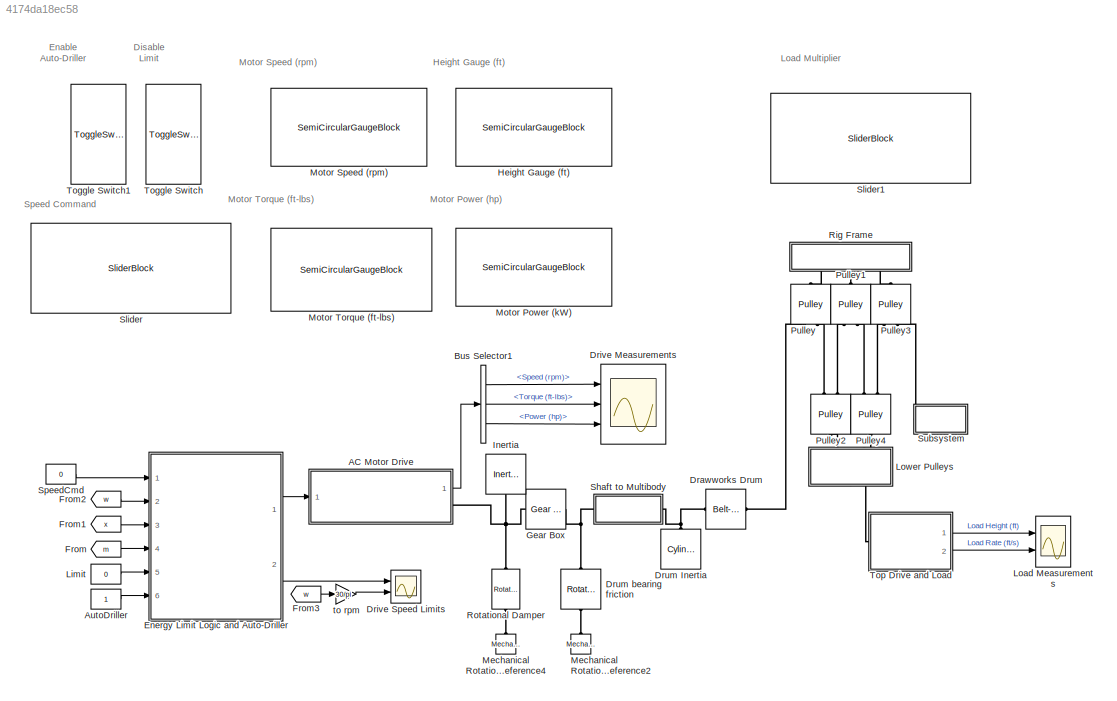
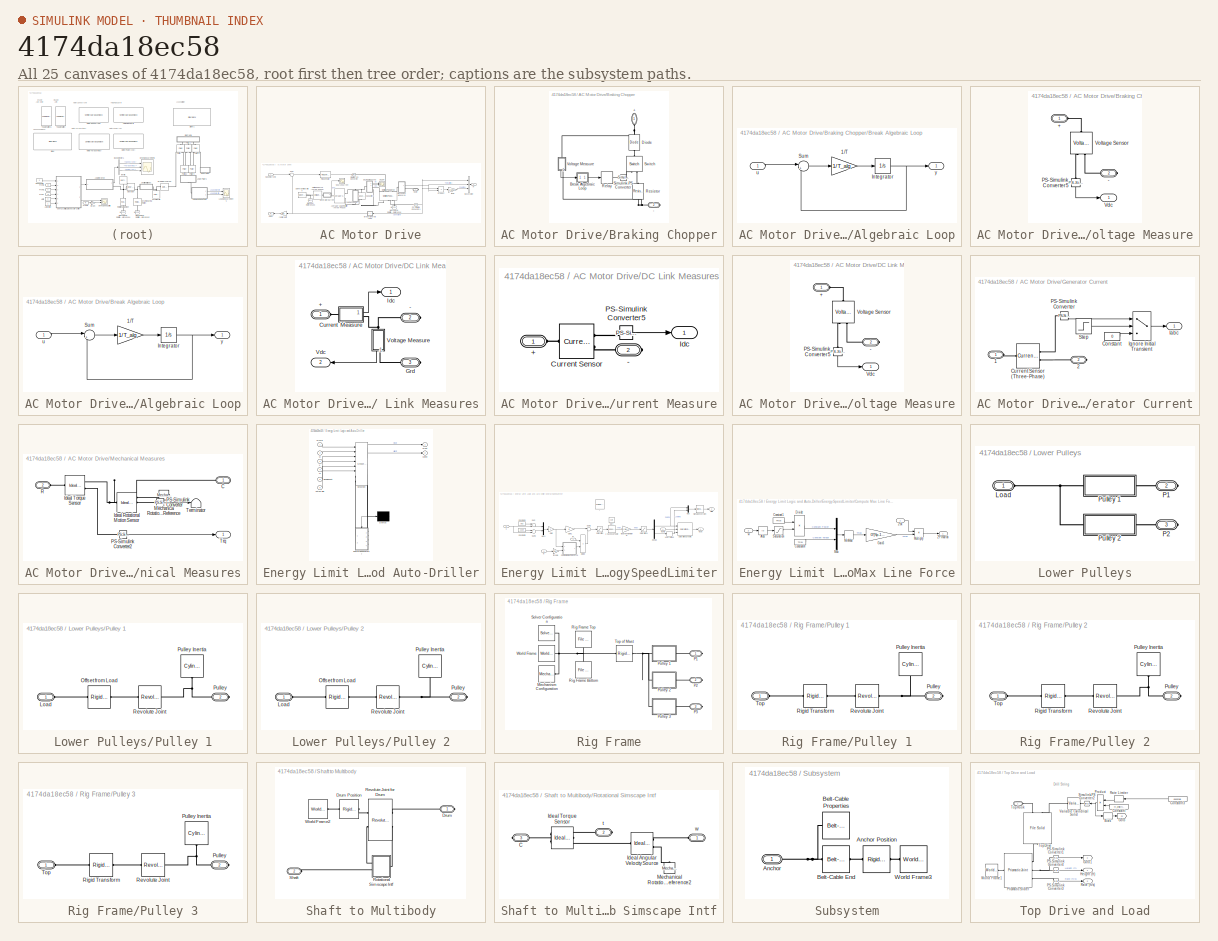
[diagram: thumbnail index - all 25 canvases of the model, root first then tree order]
MODEL slx_4174da18ec58
KIND model
CONFIG AbsTol = auto
CONFIG EnableMultiTasking = off
CONFIG FixedStep = auto
CONFIG InitFcn = Ts = 10e-4;        % SPS/Overall Simulation time step\nTssc = 10*Ts;       % Simscape simulation time step\nT_alg = 0.01;\n\nG = 10;\nRdrum = 0.25;\nNp = 5;\nm_topdrive = 1000;\nm_drillstring = 22500;\nRpulley = Rdrum;\n\nm = m_topdrive + m_drillstring;\n\n% Top/Bottom Distance\nxtop = 48*0.3048;\nxbott = 0;\n\n% Maximum Torque/Power of Drive\nTmax = 10000*1.36;\nPmax = 1500*746;\n\n% Initial Conditions\nv0 = 0; %m/s\nx...<+29ch>
CONFIG MaxStep = auto
CONFIG MinStep = auto
CONFIG PreLoadFcn = addpath('CAD_Files');\nwarning('off','sm:sli:setup:compile:LocalSolverNotSupported');\n\nloadScale = 4;
CONFIG RelTol = 1e-3
CONFIG SampleTimeConstraint = Unconstrained
CONFIG Solver = ode3
CONFIG SolverName = ode3
CONFIG StartTime = 0.0
CONFIG StopTime = inf
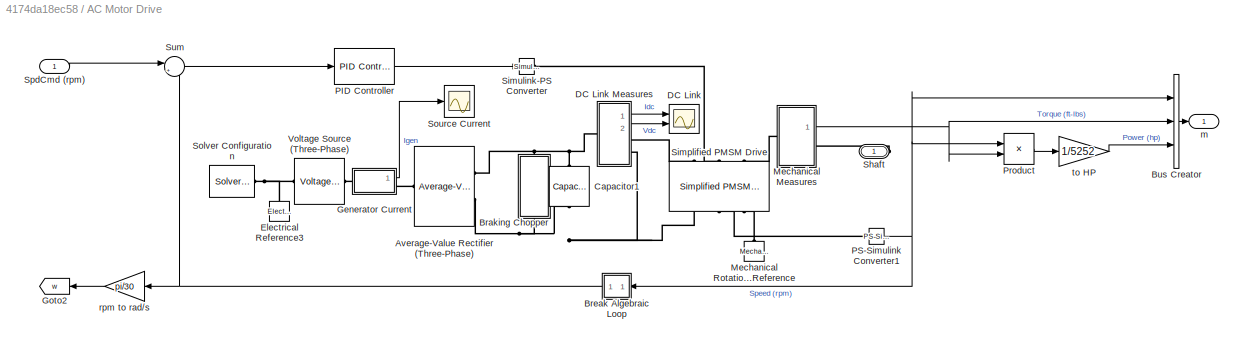
BLOCK [SubSystem] AC Motor Drive
  Ports = [1, 1, 0, 0, 0, 0, 1]
  RequestExecContextInheritance = off
BLOCK [Reference] AC Motor Drive/Average-Value Rectifier (Three-Phase)  REF=ee_lib/Semiconductors &
Converters/Converters/Average-Value
Rectifier
(Three-Phase)
  Ports = [0, 0, 0, 0, 0, 1, 2]
  SourceBlock = ee_lib/Semiconductors &\nConverters/Converters/Average-Value\nRectifier\n(Three-Phase)
  SourceProductBaseCode = PS
  SourceProductName = Simscape Electrical
  SourceType = Average-Value\nRectifier\n(Three-Phase)
BLOCK [SubSystem] AC Motor Drive/Braking Chopper
  Ports = [0, 0, 0, 0, 0, 1, 1]
  RequestExecContextInheritance = off
BLOCK [PMIOPort] AC Motor Drive/Braking Chopper/+
  Side = Left
BLOCK [PMIOPort] AC Motor Drive/Braking Chopper/-
  Port = 2
  Side = Right
BLOCK [SubSystem] AC Motor Drive/Braking Chopper/Break Algebraic Loop
  Ports = [1, 1]
  RequestExecContextInheritance = off
BLOCK [Gain] AC Motor Drive/Braking Chopper/Break Algebraic Loop/1//T
  Gain = 1/T_alg
  OutDataTypeStr = Inherit: Inherit via internal rule
  ParamDataTypeStr = Inherit: Inherit via internal rule
  SaturateOnIntegerOverflow = off
BLOCK [Integrator] AC Motor Drive/Braking Chopper/Break Algebraic Loop/Integrator
  Ports = [1, 1]
BLOCK [Sum] AC Motor Drive/Braking Chopper/Break Algebraic Loop/Sum
  IconShape = round
  InputSameDT = off
  Inputs = |+-
  OutDataTypeStr = Inherit: Inherit via internal rule
  Ports = [2, 1]
  SaturateOnIntegerOverflow = off
BLOCK [Inport] AC Motor Drive/Braking Chopper/Break Algebraic Loop/u
  IconDisplay = Port number
BLOCK [Outport] AC Motor Drive/Braking Chopper/Break Algebraic Loop/y
  IconDisplay = Port number
  VectorParamsAs1DForOutWhenUnconnected = off
BLOCK [Reference] AC Motor Drive/Braking Chopper/Diode  REF=fl_lib/Electrical/Electrical Elements/Diode
  Ports = [0, 0, 0, 0, 0, 1, 1]
  SourceBlock = fl_lib/Electrical/Electrical Elements/Diode
  SourceProductBaseCode = SS
  SourceProductName = Simscape
  SourceType = Diode
BLOCK [Relay] AC Motor Drive/Braking Chopper/Relay
  OffSwitchValue = 1200
  OnSwitchValue = 1500
BLOCK [Reference] AC Motor Drive/Braking Chopper/Resistor  REF=fl_lib/Electrical/Electrical Elements/Resistor
  Ports = [0, 0, 0, 0, 0, 1, 1]
  SourceBlock = fl_lib/Electrical/Electrical Elements/Resistor
  SourceProductBaseCode = SS
  SourceProductName = Simscape
  SourceType = Resistor
BLOCK [Reference] AC Motor Drive/Braking Chopper/Simulink-PS Converter  REF=nesl_utility/Simulink-PS
Converter
  Ports = [1, 0, 0, 0, 0, 0, 1]
  SourceBlock = nesl_utility/Simulink-PS\nConverter
  SourceProductBaseCode = SS
  SourceProductName = Simscape
  SourceType = Simulink-PS\nConverter
BLOCK [Reference] AC Motor Drive/Braking Chopper/Switch  REF=fl_lib/Electrical/Electrical Elements/Switch
  Ports = [0, 0, 0, 0, 0, 1, 2]
  SourceBlock = fl_lib/Electrical/Electrical Elements/Switch
  SourceProductBaseCode = SS
  SourceProductName = Simscape
  SourceType = Switch
BLOCK [SubSystem] AC Motor Drive/Braking Chopper/Voltage Measure
  Ports = [0, 1, 0, 0, 0, 1, 1]
  RequestExecContextInheritance = off
BLOCK [PMIOPort] AC Motor Drive/Braking Chopper/Voltage Measure/+
  Side = Left
BLOCK [PMIOPort] AC Motor Drive/Braking Chopper/Voltage Measure/-
  Port = 2
  Side = Right
BLOCK [Reference] AC Motor Drive/Braking Chopper/Voltage Measure/PS-Simulink Converter5  REF=nesl_utility/PS-Simulink
Converter
  Ports = [0, 1, 0, 0, 0, 1]
  SourceBlock = nesl_utility/PS-Simulink\nConverter
  SourceProductBaseCode = SS
  SourceProductName = Simscape
  SourceType = PS-Simulink\nConverter
BLOCK [Outport] AC Motor Drive/Braking Chopper/Voltage Measure/Vdc
  IconDisplay = Port number
  VectorParamsAs1DForOutWhenUnconnected = off
BLOCK [Reference] AC Motor Drive/Braking Chopper/Voltage Measure/Voltage Sensor  REF=fl_lib/Electrical/Electrical Sensors/Voltage Sensor
  Ports = [0, 0, 0, 0, 0, 1, 2]
  SourceBlock = fl_lib/Electrical/Electrical Sensors/Voltage Sensor
  SourceProductBaseCode = SS
  SourceProductName = Simscape
  SourceType = Voltage Sensor
BLOCK [SubSystem] AC Motor Drive/Break Algebraic Loop
  Ports = [1, 1]
  RequestExecContextInheritance = off
BLOCK [Gain] AC Motor Drive/Break Algebraic Loop/1//T
  Gain = 1/T_alg
  OutDataTypeStr = Inherit: Inherit via internal rule
  ParamDataTypeStr = Inherit: Inherit via internal rule
  SaturateOnIntegerOverflow = off
BLOCK [Integrator] AC Motor Drive/Break Algebraic Loop/Integrator
  Ports = [1, 1]
BLOCK [Sum] AC Motor Drive/Break Algebraic Loop/Sum
  IconShape = round
  InputSameDT = off
  Inputs = |+-
  OutDataTypeStr = Inherit: Inherit via internal rule
  Ports = [2, 1]
  SaturateOnIntegerOverflow = off
BLOCK [Inport] AC Motor Drive/Break Algebraic Loop/u
  IconDisplay = Port number
BLOCK [Outport] AC Motor Drive/Break Algebraic Loop/y
  IconDisplay = Port number
  VectorParamsAs1DForOutWhenUnconnected = off
BLOCK [BusCreator] AC Motor Drive/Bus Creator
  DisplayOption = bar
  InheritFromInputs = on
  Inputs = 3
  Ports = [3, 1]
BLOCK [Reference] AC Motor Drive/Capacitor1  REF=fl_lib/Electrical/Electrical Elements/Capacitor
  Ports = [0, 0, 0, 0, 0, 1, 1]
  SourceBlock = fl_lib/Electrical/Electrical Elements/Capacitor
  SourceProductBaseCode = SS
  SourceProductName = Simscape
  SourceType = Capacitor
BLOCK [Scope] AC Motor Drive/DC Link
  Floating = off
  NumInputPorts = 2
  Ports = [2]
  ScopeSpecificationString = Simulink.scopes.TimeScopeBlockCfg('CurrentConfiguration', extmgr.ConfigurationSet(extmgr.Configuration('Core','General UI',true),extmgr.Configuration('Core','Source UI',true),extmgr.Configuration('Sources','WiredSimulink',true),extmgr.Configuration('Visuals','Time Domain',true,'SerializedDisplays',{struct('MinYLimReal','-832.88922','MaxYLimReal','979.19835','YLabelReal','','MinYLimMag',' 0.00000',...<+2024ch>
BLOCK [SubSystem] AC Motor Drive/DC Link Measures
  Ports = [0, 2, 0, 0, 0, 1, 2]
  RequestExecContextInheritance = off
BLOCK [PMIOPort] AC Motor Drive/DC Link Measures/+
  Side = Left
BLOCK [PMIOPort] AC Motor Drive/DC Link Measures/-
  Port = 2
  Side = Right
BLOCK [SubSystem] AC Motor Drive/DC Link Measures/Current Measure
  Ports = [0, 1, 0, 0, 0, 1, 1]
  RequestExecContextInheritance = off
BLOCK [PMIOPort] AC Motor Drive/DC Link Measures/Current Measure/+
  Side = Left
BLOCK [PMIOPort] AC Motor Drive/DC Link Measures/Current Measure/-
  Port = 2
  Side = Right
BLOCK [Reference] AC Motor Drive/DC Link Measures/Current Measure/Current Sensor  REF=fl_lib/Electrical/Electrical Sensors/Current Sensor
  Ports = [0, 0, 0, 0, 0, 1, 2]
  SourceBlock = fl_lib/Electrical/Electrical Sensors/Current Sensor
  SourceProductBaseCode = SS
  SourceProductName = Simscape
  SourceType = Current Sensor
BLOCK [Outport] AC Motor Drive/DC Link Measures/Current Measure/Idc
  IconDisplay = Port number
  VectorParamsAs1DForOutWhenUnconnected = off
BLOCK [Reference] AC Motor Drive/DC Link Measures/Current Measure/PS-Simulink Converter5  REF=nesl_utility/PS-Simulink
Converter
  Ports = [0, 1, 0, 0, 0, 1]
  SourceBlock = nesl_utility/PS-Simulink\nConverter
  SourceProductBaseCode = SS
  SourceProductName = Simscape
  SourceType = PS-Simulink\nConverter
BLOCK [PMIOPort] AC Motor Drive/DC Link Measures/Grd
  Port = 3
  Side = Right
BLOCK [Outport] AC Motor Drive/DC Link Measures/Idc
  IconDisplay = Port number
  VectorParamsAs1DForOutWhenUnconnected = off
BLOCK [Outport] AC Motor Drive/DC Link Measures/Vdc
  IconDisplay = Port number
  Port = 2
  VectorParamsAs1DForOutWhenUnconnected = off
BLOCK [SubSystem] AC Motor Drive/DC Link Measures/Voltage Measure
  Ports = [0, 1, 0, 0, 0, 1, 1]
  RequestExecContextInheritance = off
BLOCK [PMIOPort] AC Motor Drive/DC Link Measures/Voltage Measure/+
  Side = Left
BLOCK [PMIOPort] AC Motor Drive/DC Link Measures/Voltage Measure/-
  Port = 2
  Side = Right
BLOCK [Reference] AC Motor Drive/DC Link Measures/Voltage Measure/PS-Simulink Converter5  REF=nesl_utility/PS-Simulink
Converter
  Ports = [0, 1, 0, 0, 0, 1]
  SourceBlock = nesl_utility/PS-Simulink\nConverter
  SourceProductBaseCode = SS
  SourceProductName = Simscape
  SourceType = PS-Simulink\nConverter
BLOCK [Outport] AC Motor Drive/DC Link Measures/Voltage Measure/Vdc
  IconDisplay = Port number
  VectorParamsAs1DForOutWhenUnconnected = off
BLOCK [Reference] AC Motor Drive/DC Link Measures/Voltage Measure/Voltage Sensor  REF=fl_lib/Electrical/Electrical Sensors/Voltage Sensor
  Ports = [0, 0, 0, 0, 0, 1, 2]
  SourceBlock = fl_lib/Electrical/Electrical Sensors/Voltage Sensor
  SourceProductBaseCode = SS
  SourceProductName = Simscape
  SourceType = Voltage Sensor
BLOCK [Reference] AC Motor Drive/Electrical Reference3  REF=fl_lib/Electrical/Electrical Elements/Electrical Reference
  Ports = [0, 0, 0, 0, 0, 1]
  SourceBlock = fl_lib/Electrical/Electrical Elements/Electrical Reference
  SourceProductBaseCode = SS
  SourceProductName = Simscape
  SourceType = Electrical Reference
BLOCK [SubSystem] AC Motor Drive/Generator Current
  Ports = [0, 1, 0, 0, 0, 1, 1]
  RequestExecContextInheritance = off
BLOCK [PMIOPort] AC Motor Drive/Generator Current/1
  Side = Left
BLOCK [PMIOPort] AC Motor Drive/Generator Current/2
  Port = 2
  Side = Right
BLOCK [Constant] AC Motor Drive/Generator Current/Constant
  Value = 0
BLOCK [Reference] AC Motor Drive/Generator Current/Current Sensor (Three-Phase)  REF=ee_lib/Sensors &
Transducers/Current Sensor
(Three-Phase)
  Ports = [0, 0, 0, 0, 0, 1, 2]
  SourceBlock = ee_lib/Sensors &\nTransducers/Current Sensor\n(Three-Phase)
  SourceProductBaseCode = PS
  SourceProductName = Simscape Electrical
  SourceType = Current Sensor\n(Three-Phase)
BLOCK [Outport] AC Motor Drive/Generator Current/Iabc
  IconDisplay = Port number
  VectorParamsAs1DForOutWhenUnconnected = off
BLOCK [Switch] AC Motor Drive/Generator Current/Ignore Initial Transient
  Criteria = u2 > Threshold
  InputSameDT = off
  SaturateOnIntegerOverflow = off
BLOCK [Reference] AC Motor Drive/Generator Current/PS-Simulink Converter  REF=nesl_utility/PS-Simulink
Converter
  Ports = [0, 1, 0, 0, 0, 1]
  SourceBlock = nesl_utility/PS-Simulink\nConverter
  SourceProductBaseCode = SS
  SourceProductName = Simscape
  SourceType = PS-Simulink\nConverter
BLOCK [Step] AC Motor Drive/Generator Current/Step
  SampleTime = 0
BLOCK [Goto] AC Motor Drive/Goto2
  GotoTag = w
  TagVisibility = global
BLOCK [SubSystem] AC Motor Drive/Mechanical Measures
  Ports = [0, 1, 0, 0, 0, 1, 1]
  RequestExecContextInheritance = off
BLOCK [PMIOPort] AC Motor Drive/Mechanical Measures/C
  Side = Right
BLOCK [Reference] AC Motor Drive/Mechanical Measures/Ideal Rotational Motion Sensor  REF=fl_lib/Mechanical/Mechanical Sensors/Ideal Rotational
Motion Sensor
  Ports = [0, 0, 0, 0, 0, 1, 3]
  SourceBlock = fl_lib/Mechanical/Mechanical Sensors/Ideal Rotational\nMotion Sensor
  SourceProductBaseCode = SS
  SourceProductName = Simscape
  SourceType = Ideal Rotational\nMotion Sensor
BLOCK [Reference] AC Motor Drive/Mechanical Measures/Ideal Torque Sensor  REF=fl_lib/Mechanical/Mechanical Sensors/Ideal Torque Sensor
  Ports = [0, 0, 0, 0, 0, 1, 2]
  SourceBlock = fl_lib/Mechanical/Mechanical Sensors/Ideal Torque Sensor
  SourceProductBaseCode = SS
  SourceProductName = Simscape
  SourceType = Ideal Torque Sensor
BLOCK [Reference] AC Motor Drive/Mechanical Measures/Mechanical Rotational Reference  REF=fl_lib/Mechanical/Rotational Elements/Mechanical
Rotational Reference
  Ports = [0, 0, 0, 0, 0, 1]
  SourceBlock = fl_lib/Mechanical/Rotational Elements/Mechanical\nRotational Reference
  SourceProductBaseCode = SS
  SourceProductName = Simscape
  SourceType = Mechanical\nRotational Reference
BLOCK [Reference] AC Motor Drive/Mechanical Measures/PS-Simulink Converter  REF=nesl_utility/PS-Simulink
Converter
  Ports = [0, 1, 0, 0, 0, 1]
  SourceBlock = nesl_utility/PS-Simulink\nConverter
  SourceProductBaseCode = SS
  SourceProductName = Simscape
  SourceType = PS-Simulink\nConverter
BLOCK [Reference] AC Motor Drive/Mechanical Measures/PS-Simulink Converter2  REF=nesl_utility/PS-Simulink
Converter
  Ports = [0, 1, 0, 0, 0, 1]
  SourceBlock = nesl_utility/PS-Simulink\nConverter
  SourceProductBaseCode = SS
  SourceProductName = Simscape
  SourceType = PS-Simulink\nConverter
BLOCK [PMIOPort] AC Motor Drive/Mechanical Measures/R
  Port = 2
  Side = Left
BLOCK [Terminator] AC Motor Drive/Mechanical Measures/Terminator
BLOCK [Outport] AC Motor Drive/Mechanical Measures/Trq
  IconDisplay = Port number
  VectorParamsAs1DForOutWhenUnconnected = off
BLOCK [Reference] AC Motor Drive/Mechanical Rotational Reference  REF=fl_lib/Mechanical/Rotational Elements/Mechanical
Rotational Reference
  Ports = [0, 0, 0, 0, 0, 1]
  SourceBlock = fl_lib/Mechanical/Rotational Elements/Mechanical\nRotational Reference
  SourceProductBaseCode = SS
  SourceProductName = Simscape
  SourceType = Mechanical\nRotational Reference
BLOCK [Reference] AC Motor Drive/PID Controller  REF=simulink/Continuous/PID Controller
  Ports = [1, 1]
  SourceBlock = simulink/Continuous/PID Controller
  SourceProductBaseCode = SL
  SourceProductName = Simulink
  SourceType = PID 1dof
BLOCK [Reference] AC Motor Drive/PS-Simulink Converter1  REF=nesl_utility/PS-Simulink
Converter
  Ports = [0, 1, 0, 0, 0, 1]
  SourceBlock = nesl_utility/PS-Simulink\nConverter
  SourceProductBaseCode = SS
  SourceProductName = Simscape
  SourceType = PS-Simulink\nConverter
BLOCK [Product] AC Motor Drive/Product
  InputSameDT = off
  OutDataTypeStr = Inherit: Inherit via internal rule
  Ports = [2, 1]
  RndMeth = Floor
  SaturateOnIntegerOverflow = off
BLOCK [PMIOPort] AC Motor Drive/Shaft
  Side = Right
BLOCK [Reference] AC Motor Drive/Simplified PMSM Drive  REF=ee_lib/Electromechanical/Permanent Magnet/Simplified PMSM
Drive
  Ports = [0, 0, 0, 0, 0, 3, 3]
  SourceBlock = ee_lib/Electromechanical/Permanent Magnet/Simplified PMSM\nDrive
  SourceProductBaseCode = PS
  SourceProductName = Simscape Electrical
  SourceType = Simplified PMSM\nDrive
BLOCK [Reference] AC Motor Drive/Simulink-PS Converter  REF=nesl_utility/Simulink-PS
Converter
  Ports = [1, 0, 0, 0, 0, 0, 1]
  SourceBlock = nesl_utility/Simulink-PS\nConverter
  SourceProductBaseCode = SS
  SourceProductName = Simscape
  SourceType = Simulink-PS\nConverter
BLOCK [Reference] AC Motor Drive/Solver Configuration  REF=nesl_utility/Solver
Configuration
  Ports = [0, 0, 0, 0, 0, 0, 1]
  SourceBlock = nesl_utility/Solver\nConfiguration
  SourceProductBaseCode = SS
  SourceProductName = Simscape
  SourceType = Solver\nConfiguration
BLOCK [Scope] AC Motor Drive/Source Current
  Floating = off
  NumInputPorts = 1
  Ports = [1]
  ScopeSpecificationString = Simulink.scopes.TimeScopeBlockCfg('CurrentConfiguration', extmgr.ConfigurationSet(extmgr.Configuration('Core','General UI',true),extmgr.Configuration('Core','Source UI',true),extmgr.Configuration('Sources','WiredSimulink',true,'DataLoggingVariableName','ScopeData1'),extmgr.Configuration('Visuals','Time Domain',true,'SerializedDisplays',{struct('MinYLimReal','-826.45225','MaxYLimReal','826.45218','...<+1471ch>
BLOCK [Inport] AC Motor Drive/SpdCmd (rpm)
  IconDisplay = Port number
BLOCK [Sum] AC Motor Drive/Sum
  IconShape = round
  InputSameDT = off
  Inputs = |+-
  OutDataTypeStr = Inherit: Inherit via internal rule
  Ports = [2, 1]
  SaturateOnIntegerOverflow = off
BLOCK [Reference] AC Motor Drive/Voltage Source (Three-Phase)  REF=ee_lib/Sources/Voltage
Source
(Three-Phase)
  Ports = [0, 0, 0, 0, 0, 1, 1]
  SourceBlock = ee_lib/Sources/Voltage\nSource\n(Three-Phase)
  SourceProductBaseCode = PS
  SourceProductName = Simscape Electrical
  SourceType = Voltage\nSource\n(Three-Phase)
BLOCK [Outport] AC Motor Drive/m
  IconDisplay = Port number
  VectorParamsAs1DForOutWhenUnconnected = off
BLOCK [Gain] AC Motor Drive/rpm to rad//s
  Gain = pi/30
  OutDataTypeStr = Inherit: Inherit via internal rule
  ParamDataTypeStr = Inherit: Inherit via internal rule
  SaturateOnIntegerOverflow = off
BLOCK [Gain] AC Motor Drive/to HP
  Gain = 1/5252
  OutDataTypeStr = Inherit: Inherit via internal rule
  ParamDataTypeStr = Inherit: Inherit via internal rule
  SaturateOnIntegerOverflow = off
BLOCK [Constant] AutoDriller
  OutDataTypeStr = boolean
BLOCK [BusSelector] Bus Selector1
  OutputAsBus = off
  OutputSignals = Speed (rpm),Torque (ft-lbs),Power (hp)
  Ports = [1, 3]
BLOCK [Reference] Drawworks Drum  REF=sm_lib/Belts and Cables/Belt-Cable Spool
  Ports = [0, 0, 0, 0, 0, 1, 1]
  SourceBlock = sm_lib/Belts and Cables/Belt-Cable Spool
  SourceProductBaseCode = MS
  SourceProductName = Simscape Multibody
  SourceType = Belt-Cable Spool
BLOCK [Scope] Drive Measurements
  Floating = off
  NumInputPorts = 3
  Ports = [3]
  ScopeSpecificationString = Simulink.scopes.TimeScopeBlockCfg('CurrentConfiguration', extmgr.ConfigurationSet(extmgr.Configuration('Core','General UI',true),extmgr.Configuration('Core','Source UI',true),extmgr.Configuration('Sources','WiredSimulink',true,'DataLoggingSaveFormat','Array','DataLoggingDecimation','1','DataLoggingDecimateData',true,'DataLoggingVariableName','ScopeData1'),extmgr.Configuration('Visuals','Time Domai...<+3012ch>
BLOCK [Scope] Drive Speed Limits
  Floating = off
  NumInputPorts = 2
  Ports = [2]
  ScopeSpecificationString = Simulink.scopes.TimeScopeBlockCfg('CurrentConfiguration', extmgr.ConfigurationSet(extmgr.Configuration('Core','General UI',true),extmgr.Configuration('Core','Source UI',true),extmgr.Configuration('Sources','WiredSimulink',true,'DataLoggingVariableName','ScopeData2'),extmgr.Configuration('Visuals','Time Domain',true,'SerializedDisplays',{struct('MinYLimReal','-1875.00000','MaxYLimReal','1875.00000'...<+1883ch>
BLOCK [Reference] Drum Inertia  REF=sm_lib/Body Elements/Cylindrical Solid
  Ports = [0, 0, 0, 0, 0, 1]
  SourceBlock = sm_lib/Body Elements/Cylindrical Solid
  SourceProductBaseCode = MS
  SourceProductName = Simscape Multibody
  SourceType = Cylindrical Solid
BLOCK [Reference] Drum bearing friction  REF=fl_lib/Mechanical/Rotational Elements/Rotational Friction
  Ports = [0, 0, 0, 0, 0, 1, 1]
  SourceBlock = fl_lib/Mechanical/Rotational Elements/Rotational Friction
  SourceProductBaseCode = SS
  SourceProductName = Simscape
  SourceType = Rotational Friction
BLOCK [SubSystem] Energy Limit Logic and Auto-Driller
  ErrorFcn = Stateflow.Translate.translate
  PermitHierarchicalResolution = ExplicitOnly
  Ports = [6, 2]
  RequestExecContextInheritance = off
  SFBlockType = Chart
  SystemSampleTime = Tssc
  TreatAsAtomicUnit = on
BLOCK [Demux] Energy Limit Logic and Auto-Driller/ Demux 
  Outputs = 1
  Ports = [1, 1]
BLOCK [S-Function] Energy Limit Logic and Auto-Driller/ SFunction 
  EnableBusSupport = on
  FunctionName = sf_sfun
  PortCounts = [8 7]
  Ports = [8, 7]
  SFcnIsStateOwnerBlock = off
  SFunctionDeploymentMode = off
  Tag = Stateflow S-Function 3
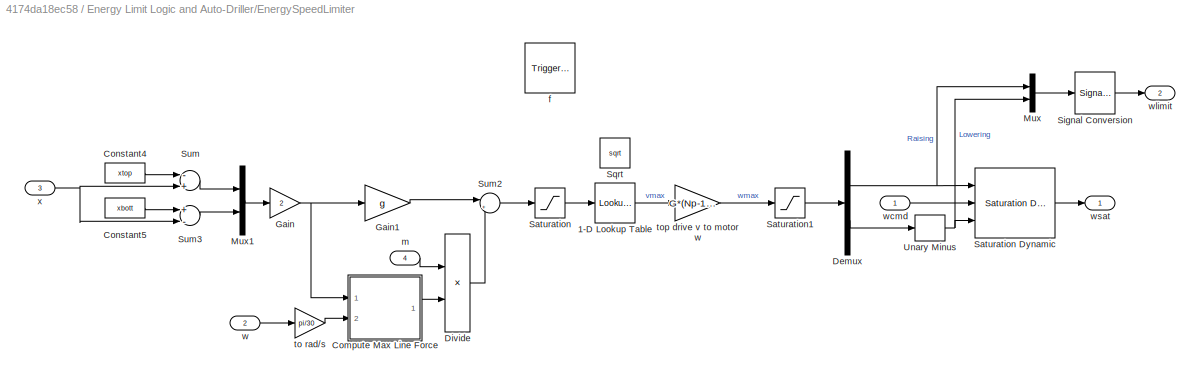
BLOCK [SubSystem] Energy Limit Logic and Auto-Driller/EnergySpeedLimiter
  Ports = [4, 2, 0, 1]
  PreDeleteFcn = Stateflow.SLINSF.SimulinkMan.removePreDeleteFcn
  RequestExecContextInheritance = off
  UndoDeleteFcn = Stateflow.SLINSF.SimulinkMan.restorePreDeleteFcn
BLOCK [Lookup_n-D] Energy Limit Logic and Auto-Driller/EnergySpeedLimiter/1-D Lookup Table
  BreakpointsForDimension1 = [0:500]
  BreakpointsForDimension1FirstPoint = 0
  BreakpointsSpecification = Even spacing
  ExtrapMethod = Clip
  InternalRulePriority = Speed
  NumberOfTableDimensions = 1
  Ports = [1, 1]
  RndMeth = Simplest
  Table = sqrt([0:500])
BLOCK [SubSystem] Energy Limit Logic and Auto-Driller/EnergySpeedLimiter/Compute Max Line Force
  Ports = [2, 1]
  RequestExecContextInheritance = off
BLOCK [Outport] Energy Limit Logic and Auto-Driller/EnergySpeedLimiter/Compute Max Line Force/2*Fmax*dx
  IconDisplay = Port number
  VectorParamsAs1DForOutWhenUnconnected = off
BLOCK [Inport] Energy Limit Logic and Auto-Driller/EnergySpeedLimiter/Compute Max Line Force/2*dx
  IconDisplay = Port number
BLOCK [Abs] Energy Limit Logic and Auto-Driller/EnergySpeedLimiter/Compute Max Line Force/Abs
  SaturateOnIntegerOverflow = off
BLOCK [Constant] Energy Limit Logic and Auto-Driller/EnergySpeedLimiter/Compute Max Line Force/Constant1
  Value = Pmax
BLOCK [Constant] Energy Limit Logic and Auto-Driller/EnergySpeedLimiter/Compute Max Line Force/Constant4
  Value = Tmax
BLOCK [Product] Energy Limit Logic and Auto-Driller/EnergySpeedLimiter/Compute Max Line Force/Divide
  InputSameDT = off
  Inputs = */
  OutDataTypeStr = Inherit: Inherit via internal rule
  Ports = [2, 1]
  RndMeth = Floor
  SaturateOnIntegerOverflow = off
BLOCK [Gain] Energy Limit Logic and Auto-Driller/EnergySpeedLimiter/Compute Max Line Force/Gain3
  Gain = G*(Np-1)/Rdrum
  OutDataTypeStr = Inherit: Inherit via internal rule
  ParamDataTypeStr = Inherit: Inherit via internal rule
  SaturateOnIntegerOverflow = off
BLOCK [MinMax] Energy Limit Logic and Auto-Driller/EnergySpeedLimiter/Compute Max Line Force/MinMax
  InputSameDT = off
  Ports = [1, 1]
  SaturateOnIntegerOverflow = off
BLOCK [Product] Energy Limit Logic and Auto-Driller/EnergySpeedLimiter/Compute Max Line Force/Multiply
  InputSameDT = off
  OutDataTypeStr = Inherit: Inherit via internal rule
  Ports = [2, 1]
  RndMeth = Floor
  SaturateOnIntegerOverflow = off
BLOCK [Mux] Energy Limit Logic and Auto-Driller/EnergySpeedLimiter/Compute Max Line Force/Mux
  DisplayOption = bar
  Inputs = 2
  Ports = [2, 1]
BLOCK [Saturate] Energy Limit Logic and Auto-Driller/EnergySpeedLimiter/Compute Max Line Force/Saturation
  InputPortMap = u0
  LowerLimit = 0.1
  Ports = [1, 1]
  UpperLimit = inf
BLOCK [Inport] Energy Limit Logic and Auto-Driller/EnergySpeedLimiter/Compute Max Line Force/w
  IconDisplay = Port number
  Port = 2
BLOCK [Constant] Energy Limit Logic and Auto-Driller/EnergySpeedLimiter/Constant4
  Value = xtop
BLOCK [Constant] Energy Limit Logic and Auto-Driller/EnergySpeedLimiter/Constant5
  Value = xbott
BLOCK [Demux] Energy Limit Logic and Auto-Driller/EnergySpeedLimiter/Demux
  DisplayOption = bar
  Outputs = 2
  Ports = [1, 2]
BLOCK [Product] Energy Limit Logic and Auto-Driller/EnergySpeedLimiter/Divide
  InputSameDT = off
  Inputs = /*
  OutDataTypeStr = Inherit: Inherit via internal rule
  Ports = [2, 1]
  RndMeth = Floor
  SaturateOnIntegerOverflow = off
BLOCK [Gain] Energy Limit Logic and Auto-Driller/EnergySpeedLimiter/Gain
  Gain = 2
  OutDataTypeStr = Inherit: Inherit via internal rule
  ParamDataTypeStr = Inherit: Inherit via internal rule
  SaturateOnIntegerOverflow = off
BLOCK [Gain] Energy Limit Logic and Auto-Driller/EnergySpeedLimiter/Gain1
  Gain = g
  OutDataTypeStr = Inherit: Inherit via internal rule
  ParamDataTypeStr = Inherit: Inherit via internal rule
  SaturateOnIntegerOverflow = off
BLOCK [Mux] Energy Limit Logic and Auto-Driller/EnergySpeedLimiter/Mux
  DisplayOption = bar
  Inputs = 2
  Ports = [2, 1]
BLOCK [Mux] Energy Limit Logic and Auto-Driller/EnergySpeedLimiter/Mux1
  DisplayOption = bar
  Inputs = 2
  Ports = [2, 1]
BLOCK [Saturate] Energy Limit Logic and Auto-Driller/EnergySpeedLimiter/Saturation
  InputPortMap = u0
  LowerLimit = 0
  Ports = [1, 1]
  UpperLimit = inf
BLOCK [Reference] Energy Limit Logic and Auto-Driller/EnergySpeedLimiter/Saturation Dynamic  REF=simulink/Discontinuities/Saturation
Dynamic
  Ports = [3, 1]
  SourceBlock = simulink/Discontinuities/Saturation\nDynamic
  SourceProductBaseCode = SL
  SourceProductName = Simulink
  SourceType = Saturation Dynamic
BLOCK [Saturate] Energy Limit Logic and Auto-Driller/EnergySpeedLimiter/Saturation1
  InputPortMap = u0
  LowerLimit = 0
  Ports = [1, 1]
  UpperLimit = 1500
BLOCK [SignalConversion] Energy Limit Logic and Auto-Driller/EnergySpeedLimiter/Signal Conversion
  OverrideOpt = off
BLOCK [Sqrt] Energy Limit Logic and Auto-Driller/EnergySpeedLimiter/Sqrt
  Commented = on
  OutputSignalType = real
BLOCK [Sum] Energy Limit Logic and Auto-Driller/EnergySpeedLimiter/Sum
  InputSameDT = off
  Inputs = -+
  OutDataTypeStr = Inherit: Inherit via internal rule
  Ports = [2, 1]
  SaturateOnIntegerOverflow = off
BLOCK [Sum] Energy Limit Logic and Auto-Driller/EnergySpeedLimiter/Sum2
  IconShape = round
  InputSameDT = off
  Inputs = |+-
  OutDataTypeStr = Inherit: Inherit via internal rule
  Ports = [2, 1]
  SaturateOnIntegerOverflow = off
BLOCK [Sum] Energy Limit Logic and Auto-Driller/EnergySpeedLimiter/Sum3
  InputSameDT = off
  Inputs = +-
  OutDataTypeStr = Inherit: Inherit via internal rule
  Ports = [2, 1]
  SaturateOnIntegerOverflow = off
BLOCK [UnaryMinus] Energy Limit Logic and Auto-Driller/EnergySpeedLimiter/Unary Minus
BLOCK [TriggerPort] Energy Limit Logic and Auto-Driller/EnergySpeedLimiter/f
  CopyFcn = Stateflow.SLINSF.SimulinkMan.removeBlockPreDeleteFcn
  Ports = []
  PreDeleteFcn = Stateflow.SLINSF.SimulinkMan.unsafePredeleteFcn
  StatesWhenEnabling = held
  TriggerType = function-call
  VariantControl = (inherit)
BLOCK [Inport] Energy Limit Logic and Auto-Driller/EnergySpeedLimiter/m
  IconDisplay = Port number
  OutDataTypeStr = double
  Port = 4
  PortDimensions = 1
  SignalType = real
  VarSizeSig = No
BLOCK [Gain] Energy Limit Logic and Auto-Driller/EnergySpeedLimiter/to rad//s
  Gain = pi/30
  OutDataTypeStr = Inherit: Inherit via internal rule
  ParamDataTypeStr = Inherit: Inherit via internal rule
  SaturateOnIntegerOverflow = off
BLOCK [Gain] Energy Limit Logic and Auto-Driller/EnergySpeedLimiter/top drive v to motor w
  Gain = G*(Np-1)/Rdrum
  OutDataTypeStr = Inherit: Inherit via internal rule
  ParamDataTypeStr = Inherit: Inherit via internal rule
  SaturateOnIntegerOverflow = off
BLOCK [Inport] Energy Limit Logic and Auto-Driller/EnergySpeedLimiter/w
  IconDisplay = Port number
  OutDataTypeStr = double
  Port = 2
  PortDimensions = 1
  SignalType = real
  VarSizeSig = No
BLOCK [Inport] Energy Limit Logic and Auto-Driller/EnergySpeedLimiter/wcmd
  IconDisplay = Port number
  OutDataTypeStr = double
  PortDimensions = 1
  SignalType = real
  VarSizeSig = No
BLOCK [Outport] Energy Limit Logic and Auto-Driller/EnergySpeedLimiter/wlimit
  IconDisplay = Port number
  Port = 2
  VectorParamsAs1DForOutWhenUnconnected = off
BLOCK [Outport] Energy Limit Logic and Auto-Driller/EnergySpeedLimiter/wsat
  IconDisplay = Port number
  VectorParamsAs1DForOutWhenUnconnected = off
BLOCK [Inport] Energy Limit Logic and Auto-Driller/EnergySpeedLimiter/x
  IconDisplay = Port number
  OutDataTypeStr = double
  Port = 3
  PortDimensions = 1
  SignalType = real
  VarSizeSig = No
BLOCK [Inport] Energy Limit Logic and Auto-Driller/autoDriller
  IconDisplay = Port number
  Port = 6
BLOCK [Inport] Energy Limit Logic and Auto-Driller/disableLimit
  IconDisplay = Port number
  Port = 5
BLOCK [Inport] Energy Limit Logic and Auto-Driller/m
  IconDisplay = Port number
  Port = 4
BLOCK [Inport] Energy Limit Logic and Auto-Driller/w
  IconDisplay = Port number
  Port = 2
BLOCK [Inport] Energy Limit Logic and Auto-Driller/wcmd
  IconDisplay = Port number
BLOCK [Outport] Energy Limit Logic and Auto-Driller/wlimit
  IconDisplay = Port number
  Port = 2
  VectorParamsAs1DForOutWhenUnconnected = off
BLOCK [Outport] Energy Limit Logic and Auto-Driller/wout
  IconDisplay = Port number
  VectorParamsAs1DForOutWhenUnconnected = off
BLOCK [Inport] Energy Limit Logic and Auto-Driller/x
  IconDisplay = Port number
  Port = 3
BLOCK [From] From
  GotoTag = m
  TagVisibility = global
BLOCK [From] From1
  GotoTag = x
  TagVisibility = global
BLOCK [From] From2
  GotoTag = w
  TagVisibility = global
BLOCK [From] From3
  GotoTag = w
  TagVisibility = global
BLOCK [Reference] Gear Box  REF=fl_lib/Mechanical/Mechanisms/Gear Box
  Ports = [0, 0, 0, 0, 0, 1, 1]
  SourceBlock = fl_lib/Mechanical/Mechanisms/Gear Box
  SourceProductBaseCode = SS
  SourceProductName = Simscape
  SourceType = Gear Box
BLOCK [SemiCircularGaugeBlock] Height Gauge (ft)
  LabelPosition = Hide
  ScaleMax = 50
  TickInterval = 10
BLOCK [Reference] Inertia  REF=fl_lib/Mechanical/Rotational Elements/Inertia
  Ports = [0, 0, 0, 0, 0, 1]
  SourceBlock = fl_lib/Mechanical/Rotational Elements/Inertia
  SourceProductBaseCode = SS
  SourceProductName = Simscape
  SourceType = Inertia
BLOCK [Constant] Limit
  OutDataTypeStr = boolean
  Value = 0
BLOCK [Scope] Load Measurements
  Floating = off
  NumInputPorts = 2
  Ports = [2]
  ScopeSpecificationString = Simulink.scopes.TimeScopeBlockCfg('CurrentConfiguration', extmgr.ConfigurationSet(extmgr.Configuration('Core','General UI',true),extmgr.Configuration('Core','Source UI',true),extmgr.Configuration('Sources','WiredSimulink',true,'DataLoggingVariableName','ScopeData2','SampleTime','Tssc'),extmgr.Configuration('Visuals','Time Domain',true,'SerializedDisplays',{struct('MinYLimReal','-3.98556','MaxYLimR...<+2078ch>
BLOCK [SubSystem] Lower Pulleys
  Ports = [0, 0, 0, 0, 0, 1, 2]
  RequestExecContextInheritance = off
BLOCK [PMIOPort] Lower Pulleys/Load
  Side = Left
BLOCK [PMIOPort] Lower Pulleys/P1
  Port = 2
  Side = Right
BLOCK [PMIOPort] Lower Pulleys/P2
  Port = 3
  Side = Right
BLOCK [SubSystem] Lower Pulleys/Pulley 1
  Ports = [0, 0, 0, 0, 0, 1, 1]
  RequestExecContextInheritance = off
BLOCK [PMIOPort] Lower Pulleys/Pulley 1/Load
  Side = Left
BLOCK [Reference] Lower Pulleys/Pulley 1/Offset from Load  REF=sm_lib/Frames and
Transforms/Rigid
Transform
  Ports = [0, 0, 0, 0, 0, 1, 1]
  SourceBlock = sm_lib/Frames and\nTransforms/Rigid\nTransform
  SourceProductBaseCode = MS
  SourceProductName = Simscape Multibody
  SourceType = Rigid\nTransform
BLOCK [PMIOPort] Lower Pulleys/Pulley 1/Pulley
  Port = 2
  Side = Right
BLOCK [Reference] Lower Pulleys/Pulley 1/Pulley Inertia  REF=sm_lib/Body Elements/Cylindrical Solid
  Ports = [0, 0, 0, 0, 0, 1]
  SourceBlock = sm_lib/Body Elements/Cylindrical Solid
  SourceProductBaseCode = MS
  SourceProductName = Simscape Multibody
  SourceType = Cylindrical Solid
BLOCK [Reference] Lower Pulleys/Pulley 1/Revolute Joint  REF=sm_lib/Joints/Revolute Joint
  Ports = [0, 0, 0, 0, 0, 1, 1]
  SourceBlock = sm_lib/Joints/Revolute Joint
  SourceProductBaseCode = MS
  SourceProductName = Simscape Multibody
  SourceType = Revolute Joint
BLOCK [SubSystem] Lower Pulleys/Pulley 2
  Ports = [0, 0, 0, 0, 0, 1, 1]
  RequestExecContextInheritance = off
BLOCK [PMIOPort] Lower Pulleys/Pulley 2/Load
  Side = Left
BLOCK [Reference] Lower Pulleys/Pulley 2/Offset from Load  REF=sm_lib/Frames and
Transforms/Rigid
Transform
  Ports = [0, 0, 0, 0, 0, 1, 1]
  SourceBlock = sm_lib/Frames and\nTransforms/Rigid\nTransform
  SourceProductBaseCode = MS
  SourceProductName = Simscape Multibody
  SourceType = Rigid\nTransform
BLOCK [PMIOPort] Lower Pulleys/Pulley 2/Pulley
  Port = 2
  Side = Right
BLOCK [Reference] Lower Pulleys/Pulley 2/Pulley Inertia  REF=sm_lib/Body Elements/Cylindrical Solid
  Ports = [0, 0, 0, 0, 0, 1]
  SourceBlock = sm_lib/Body Elements/Cylindrical Solid
  SourceProductBaseCode = MS
  SourceProductName = Simscape Multibody
  SourceType = Cylindrical Solid
BLOCK [Reference] Lower Pulleys/Pulley 2/Revolute Joint  REF=sm_lib/Joints/Revolute Joint
  Ports = [0, 0, 0, 0, 0, 1, 1]
  SourceBlock = sm_lib/Joints/Revolute Joint
  SourceProductBaseCode = MS
  SourceProductName = Simscape Multibody
  SourceType = Revolute Joint
BLOCK [Reference] Mechanical Rotational Reference2  REF=fl_lib/Mechanical/Rotational Elements/Mechanical
Rotational Reference
  Ports = [0, 0, 0, 0, 0, 1]
  SourceBlock = fl_lib/Mechanical/Rotational Elements/Mechanical\nRotational Reference
  SourceProductBaseCode = SS
  SourceProductName = Simscape
  SourceType = Mechanical\nRotational Reference
BLOCK [Reference] Mechanical Rotational Reference4  REF=fl_lib/Mechanical/Rotational Elements/Mechanical
Rotational Reference
  Ports = [0, 0, 0, 0, 0, 1]
  SourceBlock = fl_lib/Mechanical/Rotational Elements/Mechanical\nRotational Reference
  SourceProductBaseCode = SS
  SourceProductName = Simscape
  SourceType = Mechanical\nRotational Reference
BLOCK [SemiCircularGaugeBlock] Motor Power (kW)
  ScaleMax = 1000
  ScaleMin = -1000
  TickInterval = 500
BLOCK [SemiCircularGaugeBlock] Motor Speed (rpm)
  ScaleMax = 1500
  ScaleMin = -1500
  TickInterval = 500
BLOCK [SemiCircularGaugeBlock] Motor Torque (ft-lbs)
  ScaleMax = 10000
  ScaleMin = -10000
  TickInterval = 5000
BLOCK [Reference] Pulley  REF=sm_lib/Belts and Cables/Pulley
  Ports = [0, 0, 0, 0, 0, 1, 2]
  SourceBlock = sm_lib/Belts and Cables/Pulley
  SourceProductBaseCode = MS
  SourceProductName = Simscape Multibody
  SourceType = Pulley
BLOCK [Reference] Pulley1  REF=sm_lib/Belts and Cables/Pulley
  Ports = [0, 0, 0, 0, 0, 1, 2]
  SourceBlock = sm_lib/Belts and Cables/Pulley
  SourceProductBaseCode = MS
  SourceProductName = Simscape Multibody
  SourceType = Pulley
BLOCK [Reference] Pulley2  REF=sm_lib/Belts and Cables/Pulley
  Ports = [0, 0, 0, 0, 0, 1, 2]
  SourceBlock = sm_lib/Belts and Cables/Pulley
  SourceProductBaseCode = MS
  SourceProductName = Simscape Multibody
  SourceType = Pulley
BLOCK [Reference] Pulley3  REF=sm_lib/Belts and Cables/Pulley
  Ports = [0, 0, 0, 0, 0, 1, 2]
  SourceBlock = sm_lib/Belts and Cables/Pulley
  SourceProductBaseCode = MS
  SourceProductName = Simscape Multibody
  SourceType = Pulley
BLOCK [Reference] Pulley4  REF=sm_lib/Belts and Cables/Pulley
  Ports = [0, 0, 0, 0, 0, 1, 2]
  SourceBlock = sm_lib/Belts and Cables/Pulley
  SourceProductBaseCode = MS
  SourceProductName = Simscape Multibody
  SourceType = Pulley
BLOCK [SubSystem] Rig Frame
  Ports = [0, 0, 0, 0, 0, 0, 3]
  RequestExecContextInheritance = off
BLOCK [Reference] Rig Frame/Mechanism Configuration  REF=sm_lib/Utilities/Mechanism
Configuration
  Ports = [0, 0, 0, 0, 0, 0, 1]
  SourceBlock = sm_lib/Utilities/Mechanism\nConfiguration
  SourceProductBaseCode = MS
  SourceProductName = Simscape Multibody
  SourceType = Mechanism\nConfiguration
BLOCK [PMIOPort] Rig Frame/P1
  Side = Right
BLOCK [PMIOPort] Rig Frame/P2
  Port = 2
  Side = Right
BLOCK [PMIOPort] Rig Frame/P3
  Port = 3
  Side = Right
BLOCK [SubSystem] Rig Frame/Pulley 1
  Ports = [0, 0, 0, 0, 0, 1, 1]
  RequestExecContextInheritance = off
BLOCK [PMIOPort] Rig Frame/Pulley 1/Pulley
  Port = 2
  Side = Right
BLOCK [Reference] Rig Frame/Pulley 1/Pulley Inertia  REF=sm_lib/Body Elements/Cylindrical Solid
  Ports = [0, 0, 0, 0, 0, 1]
  SourceBlock = sm_lib/Body Elements/Cylindrical Solid
  SourceProductBaseCode = MS
  SourceProductName = Simscape Multibody
  SourceType = Cylindrical Solid
BLOCK [Reference] Rig Frame/Pulley 1/Revolute Joint  REF=sm_lib/Joints/Revolute Joint
  Ports = [0, 0, 0, 0, 0, 1, 1]
  SourceBlock = sm_lib/Joints/Revolute Joint
  SourceProductBaseCode = MS
  SourceProductName = Simscape Multibody
  SourceType = Revolute Joint
BLOCK [Reference] Rig Frame/Pulley 1/Rigid Transform  REF=sm_lib/Frames and
Transforms/Rigid
Transform
  Ports = [0, 0, 0, 0, 0, 1, 1]
  SourceBlock = sm_lib/Frames and\nTransforms/Rigid\nTransform
  SourceProductBaseCode = MS
  SourceProductName = Simscape Multibody
  SourceType = Rigid\nTransform
BLOCK [PMIOPort] Rig Frame/Pulley 1/Top
  Side = Left
BLOCK [SubSystem] Rig Frame/Pulley 2
  Ports = [0, 0, 0, 0, 0, 1, 1]
  RequestExecContextInheritance = off
BLOCK [PMIOPort] Rig Frame/Pulley 2/Pulley
  Port = 2
  Side = Right
BLOCK [Reference] Rig Frame/Pulley 2/Pulley Inertia  REF=sm_lib/Body Elements/Cylindrical Solid
  Ports = [0, 0, 0, 0, 0, 1]
  SourceBlock = sm_lib/Body Elements/Cylindrical Solid
  SourceProductBaseCode = MS
  SourceProductName = Simscape Multibody
  SourceType = Cylindrical Solid
BLOCK [Reference] Rig Frame/Pulley 2/Revolute Joint  REF=sm_lib/Joints/Revolute Joint
  Ports = [0, 0, 0, 0, 0, 1, 1]
  SourceBlock = sm_lib/Joints/Revolute Joint
  SourceProductBaseCode = MS
  SourceProductName = Simscape Multibody
  SourceType = Revolute Joint
BLOCK [Reference] Rig Frame/Pulley 2/Rigid Transform  REF=sm_lib/Frames and
Transforms/Rigid
Transform
  Ports = [0, 0, 0, 0, 0, 1, 1]
  SourceBlock = sm_lib/Frames and\nTransforms/Rigid\nTransform
  SourceProductBaseCode = MS
  SourceProductName = Simscape Multibody
  SourceType = Rigid\nTransform
BLOCK [PMIOPort] Rig Frame/Pulley 2/Top
  Side = Left
BLOCK [SubSystem] Rig Frame/Pulley 3
  Ports = [0, 0, 0, 0, 0, 1, 1]
  RequestExecContextInheritance = off
BLOCK [PMIOPort] Rig Frame/Pulley 3/Pulley
  Port = 2
  Side = Right
BLOCK [Reference] Rig Frame/Pulley 3/Pulley Inertia  REF=sm_lib/Body Elements/Cylindrical Solid
  Ports = [0, 0, 0, 0, 0, 1]
  SourceBlock = sm_lib/Body Elements/Cylindrical Solid
  SourceProductBaseCode = MS
  SourceProductName = Simscape Multibody
  SourceType = Cylindrical Solid
BLOCK [Reference] Rig Frame/Pulley 3/Revolute Joint  REF=sm_lib/Joints/Revolute Joint
  Ports = [0, 0, 0, 0, 0, 1, 1]
  SourceBlock = sm_lib/Joints/Revolute Joint
  SourceProductBaseCode = MS
  SourceProductName = Simscape Multibody
  SourceType = Revolute Joint
BLOCK [Reference] Rig Frame/Pulley 3/Rigid Transform  REF=sm_lib/Frames and
Transforms/Rigid
Transform
  Ports = [0, 0, 0, 0, 0, 1, 1]
  SourceBlock = sm_lib/Frames and\nTransforms/Rigid\nTransform
  SourceProductBaseCode = MS
  SourceProductName = Simscape Multibody
  SourceType = Rigid\nTransform
BLOCK [PMIOPort] Rig Frame/Pulley 3/Top
  Side = Left
BLOCK [Reference] Rig Frame/Rig Frame Bottom  REF=sm_lib/Body Elements/File Solid
  Ports = [0, 0, 0, 0, 0, 1]
  SourceBlock = sm_lib/Body Elements/File Solid
  SourceProductBaseCode = MS
  SourceProductName = Simscape Multibody
  SourceType = File Solid
BLOCK [Reference] Rig Frame/Rig Frame Top  REF=sm_lib/Body Elements/File Solid
  Ports = [0, 0, 0, 0, 0, 1]
  SourceBlock = sm_lib/Body Elements/File Solid
  SourceProductBaseCode = MS
  SourceProductName = Simscape Multibody
  SourceType = File Solid
BLOCK [Reference] Rig Frame/Solver Configuration   REF=nesl_utility/Solver
Configuration
  Commented = on
  Ports = [0, 0, 0, 0, 0, 0, 1]
  SourceBlock = nesl_utility/Solver\nConfiguration
  SourceProductBaseCode = SS
  SourceProductName = Simscape
  SourceType = Solver\nConfiguration
BLOCK [Reference] Rig Frame/Top of Mast  REF=sm_lib/Frames and
Transforms/Rigid
Transform
  Ports = [0, 0, 0, 0, 0, 1, 1]
  SourceBlock = sm_lib/Frames and\nTransforms/Rigid\nTransform
  SourceProductBaseCode = MS
  SourceProductName = Simscape Multibody
  SourceType = Rigid\nTransform
BLOCK [Reference] Rig Frame/World Frame  REF=sm_lib/Frames and
Transforms/World Frame
  Ports = [0, 0, 0, 0, 0, 0, 1]
  SourceBlock = sm_lib/Frames and\nTransforms/World Frame
  SourceProductBaseCode = MS
  SourceProductName = Simscape Multibody
  SourceType = World Frame
BLOCK [Reference] Rotational Damper  REF=fl_lib/Mechanical/Rotational Elements/Rotational Damper
  Ports = [0, 0, 0, 0, 0, 1, 1]
  SourceBlock = fl_lib/Mechanical/Rotational Elements/Rotational Damper
  SourceProductBaseCode = SS
  SourceProductName = Simscape
  SourceType = Rotational Damper
BLOCK [SubSystem] Shaft to Multibody
  Ports = [0, 0, 0, 0, 0, 1, 1]
  RequestExecContextInheritance = off
BLOCK [PMIOPort] Shaft to Multibody/Drum
  Side = Right
BLOCK [Reference] Shaft to Multibody/Drum Position  REF=sm_lib/Frames and
Transforms/Rigid
Transform
  Ports = [0, 0, 0, 0, 0, 1, 1]
  SourceBlock = sm_lib/Frames and\nTransforms/Rigid\nTransform
  SourceProductBaseCode = MS
  SourceProductName = Simscape Multibody
  SourceType = Rigid\nTransform
BLOCK [Reference] Shaft to Multibody/Revolute Joint for Drum  REF=sm_lib/Joints/Revolute Joint
  Ports = [0, 0, 0, 0, 0, 2, 2]
  SourceBlock = sm_lib/Joints/Revolute Joint
  SourceProductBaseCode = MS
  SourceProductName = Simscape Multibody
  SourceType = Revolute Joint
BLOCK [SubSystem] Shaft to Multibody/Rotational Simscape Intf
  Ports = [0, 0, 0, 0, 0, 1, 2]
  RequestExecContextInheritance = off
BLOCK [PMIOPort] Shaft to Multibody/Rotational Simscape Intf/C
  Port = 3
  Side = Right
BLOCK [Reference] Shaft to Multibody/Rotational Simscape Intf/Ideal Angular Velocity Source  REF=fl_lib/Mechanical/Mechanical Sources/Ideal Angular
Velocity Source
  Ports = [0, 0, 0, 0, 0, 1, 2]
  SourceBlock = fl_lib/Mechanical/Mechanical Sources/Ideal Angular\nVelocity Source
  SourceProductBaseCode = SS
  SourceProductName = Simscape
  SourceType = Ideal Angular\nVelocity Source
BLOCK [Reference] Shaft to Multibody/Rotational Simscape Intf/Ideal Torque Sensor  REF=fl_lib/Mechanical/Mechanical Sensors/Ideal Torque Sensor
  Ports = [0, 0, 0, 0, 0, 1, 2]
  SourceBlock = fl_lib/Mechanical/Mechanical Sensors/Ideal Torque Sensor
  SourceProductBaseCode = SS
  SourceProductName = Simscape
  SourceType = Ideal Torque Sensor
BLOCK [Reference] Shaft to Multibody/Rotational Simscape Intf/Mechanical Rotational Reference2  REF=fl_lib/Mechanical/Rotational Elements/Mechanical
Rotational Reference
  Ports = [0, 0, 0, 0, 0, 1]
  SourceBlock = fl_lib/Mechanical/Rotational Elements/Mechanical\nRotational Reference
  SourceProductBaseCode = SS
  SourceProductName = Simscape
  SourceType = Mechanical\nRotational Reference
BLOCK [PMIOPort] Shaft to Multibody/Rotational Simscape Intf/t
  Port = 2
  Side = Right
BLOCK [PMIOPort] Shaft to Multibody/Rotational Simscape Intf/w
  Side = Left
BLOCK [PMIOPort] Shaft to Multibody/Shaft
  Port = 2
  Side = Left
BLOCK [Reference] Shaft to Multibody/World Frame2  REF=sm_lib/Frames and
Transforms/World Frame
  Ports = [0, 0, 0, 0, 0, 0, 1]
  SourceBlock = sm_lib/Frames and\nTransforms/World Frame
  SourceProductBaseCode = MS
  SourceProductName = Simscape Multibody
  SourceType = World Frame
BLOCK [SliderBlock] Slider
  LabelPosition = Hide
  ScaleMax = 1500
  ScaleMin = -1500
BLOCK [SliderBlock] Slider1
  LabelPosition = Hide
  ScaleMax = 8
  TickInterval = 1
BLOCK [Constant] SpeedCmd
  OutDataTypeStr = double
  Value = 0
BLOCK [SubSystem] Subsystem
  Ports = [0, 0, 0, 0, 0, 1]
  RequestExecContextInheritance = off
BLOCK [PMIOPort] Subsystem/Anchor
  Side = Left
BLOCK [Reference] Subsystem/Anchor Position  REF=sm_lib/Frames and
Transforms/Rigid
Transform
  Ports = [0, 0, 0, 0, 0, 1, 1]
  SourceBlock = sm_lib/Frames and\nTransforms/Rigid\nTransform
  SourceProductBaseCode = MS
  SourceProductName = Simscape Multibody
  SourceType = Rigid\nTransform
BLOCK [Reference] Subsystem/Belt-Cable End  REF=sm_lib/Belts and Cables/Belt-Cable End
  Ports = [0, 0, 0, 0, 0, 1, 1]
  SourceBlock = sm_lib/Belts and Cables/Belt-Cable End
  SourceProductBaseCode = MS
  SourceProductName = Simscape Multibody
  SourceType = Belt-Cable End
BLOCK [Reference] Subsystem/Belt-Cable Properties  REF=sm_lib/Belts and Cables/Belt-Cable
Properties
  Ports = [0, 0, 0, 0, 0, 1]
  SourceBlock = sm_lib/Belts and Cables/Belt-Cable\nProperties
  SourceProductBaseCode = MS
  SourceProductName = Simscape Multibody
  SourceType = Belt-Cable\nProperties
BLOCK [Reference] Subsystem/World Frame3  REF=sm_lib/Frames and
Transforms/World Frame
  Ports = [0, 0, 0, 0, 0, 0, 1]
  SourceBlock = sm_lib/Frames and\nTransforms/World Frame
  SourceProductBaseCode = MS
  SourceProductName = Simscape Multibody
  SourceType = World Frame
BLOCK [ToggleSwitchBlock] Toggle Switch
  LabelPosition = Hide
BLOCK [ToggleSwitchBlock] Toggle Switch1
  LabelPosition = Hide
BLOCK [SubSystem] Top Drive and Load
  Ports = [0, 2, 0, 0, 0, 1]
  RequestExecContextInheritance = off
BLOCK [Bias] Top Drive and Load/Bias
  Bias = m_topdrive
  SaturateOnIntegerOverflow = off
BLOCK [Constant] Top Drive and Load/Constant
  Value = m_drillstring
BLOCK [Constant] Top Drive and Load/Constant3
  Value = loadScale
BLOCK [Goto] Top Drive and Load/Goto
  GotoTag = m
  TagVisibility = global
BLOCK [Goto] Top Drive and Load/Goto1
  GotoTag = x
  TagVisibility = global
BLOCK [Outport] Top Drive and Load/Height (ft)
  IconDisplay = Port number
  VectorParamsAs1DForOutWhenUnconnected = off
BLOCK [Reference] Top Drive and Load/PS-Simulink Converter1  REF=nesl_utility/PS-Simulink
Converter
  Ports = [0, 1, 0, 0, 0, 1]
  SourceBlock = nesl_utility/PS-Simulink\nConverter
  SourceProductBaseCode = SS
  SourceProductName = Simscape
  SourceType = PS-Simulink\nConverter
BLOCK [Reference] Top Drive and Load/PS-Simulink Converter3  REF=nesl_utility/PS-Simulink
Converter
  Ports = [0, 1, 0, 0, 0, 1]
  SourceBlock = nesl_utility/PS-Simulink\nConverter
  SourceProductBaseCode = SS
  SourceProductName = Simscape
  SourceType = PS-Simulink\nConverter
BLOCK [Reference] Top Drive and Load/PS-Simulink Converter4  REF=nesl_utility/PS-Simulink
Converter
  Ports = [0, 1, 0, 0, 0, 1]
  SourceBlock = nesl_utility/PS-Simulink\nConverter
  SourceProductBaseCode = SS
  SourceProductName = Simscape
  SourceType = PS-Simulink\nConverter
BLOCK [Reference] Top Drive and Load/Prismatic Slider  REF=sm_lib/Joints/Prismatic
Joint
  Ports = [0, 0, 0, 0, 0, 1, 3]
  SourceBlock = sm_lib/Joints/Prismatic\nJoint
  SourceProductBaseCode = MS
  SourceProductName = Simscape Multibody
  SourceType = Prismatic\nJoint
BLOCK [Product] Top Drive and Load/Product
  InputSameDT = off
  OutDataTypeStr = Inherit: Inherit via internal rule
  Ports = [2, 1]
  RndMeth = Floor
  SaturateOnIntegerOverflow = off
BLOCK [Outport] Top Drive and Load/Rate (ft//s)
  IconDisplay = Port number
  Port = 2
  VectorParamsAs1DForOutWhenUnconnected = off
BLOCK [RateLimiter] Top Drive and Load/Rate Limiter
  FallingSlewLimit = -0.1
  InitialCondition = loadScale
  RisingSlewLimit = 0.1
  SampleTimeMode = inherited
BLOCK [Reference] Top Drive and Load/Simulink-PS Converter2  REF=nesl_utility/Simulink-PS
Converter
  Ports = [1, 0, 0, 0, 0, 0, 1]
  SourceBlock = nesl_utility/Simulink-PS\nConverter
  SourceProductBaseCode = SS
  SourceProductName = Simscape
  SourceType = Simulink-PS\nConverter
BLOCK [Reference] Top Drive and Load/TopDrive  REF=sm_lib/Body Elements/File Solid
  Ports = [0, 0, 0, 0, 0, 2, 1]
  SourceBlock = sm_lib/Body Elements/File Solid
  SourceProductBaseCode = MS
  SourceProductName = Simscape Multibody
  SourceType = File Solid
BLOCK [PMIOPort] Top Drive and Load/TopHook
  Side = Left
BLOCK [Reference] Top Drive and Load/Variable Cylindrical Solid  REF=sm_lib/Body Elements/Variable Mass/Variable
Cylindrical Solid
  Ports = [0, 0, 0, 0, 0, 1, 1]
  SourceBlock = sm_lib/Body Elements/Variable Mass/Variable\nCylindrical Solid
  SourceProductBaseCode = MS
  SourceProductName = Simscape Multibody
  SourceType = Variable\nCylindrical Solid
BLOCK [Reference] Top Drive and Load/World Frame1  REF=sm_lib/Frames and
Transforms/World Frame
  Ports = [0, 0, 0, 0, 0, 0, 1]
  SourceBlock = sm_lib/Frames and\nTransforms/World Frame
  SourceProductBaseCode = MS
  SourceProductName = Simscape Multibody
  SourceType = World Frame
BLOCK [Gain] to rpm
  Gain = 30/pi
  OutDataTypeStr = Inherit: Inherit via internal rule
  ParamDataTypeStr = Inherit: Inherit via internal rule
  SaturateOnIntegerOverflow = off
ANNOTATION (root): Motor Power (hp)
ANNOTATION (root): Disable Limit
ANNOTATION (root): Enable Auto-Driller
ANNOTATION (root): Height Gauge (ft)
ANNOTATION (root): Load Multiplier
ANNOTATION (root): Motor Speed (rpm)
ANNOTATION (root): Motor Torque (ft-lbs)
ANNOTATION (root): Speed Command
ANNOTATION Top Drive and Load: Drill String
LINE AC Motor Drive/Braking Chopper/Break Algebraic Loop/1//T:1 -> AC Motor Drive/Braking Chopper/Break Algebraic Loop/Integrator:1
NET AC Motor Drive/Braking Chopper/Break Algebraic Loop/Integrator:1 -> AC Motor Drive/Braking Chopper/Break Algebraic Loop/Sum:2, AC Motor Drive/Braking Chopper/Break Algebraic Loop/y:1
LINE AC Motor Drive/Braking Chopper/Break Algebraic Loop/Sum:1 -> AC Motor Drive/Braking Chopper/Break Algebraic Loop/1//T:1
LINE AC Motor Drive/Braking Chopper/Break Algebraic Loop/u:1 -> AC Motor Drive/Braking Chopper/Break Algebraic Loop/Sum:1
LINE AC Motor Drive/Braking Chopper/Break Algebraic Loop:1 -> AC Motor Drive/Braking Chopper/Relay:1
LINE AC Motor Drive/Braking Chopper/Relay:1 -> AC Motor Drive/Braking Chopper/Simulink-PS Converter:1
LINE AC Motor Drive/Braking Chopper/Voltage Measure/PS-Simulink Converter5:1 -> AC Motor Drive/Braking Chopper/Voltage Measure/Vdc:1
LINE AC Motor Drive/Braking Chopper/Voltage Measure:1 -> AC Motor Drive/Braking Chopper/Break Algebraic Loop:1
LINE AC Motor Drive/Break Algebraic Loop/1//T:1 -> AC Motor Drive/Break Algebraic Loop/Integrator:1
NET AC Motor Drive/Break Algebraic Loop/Integrator:1 -> AC Motor Drive/Break Algebraic Loop/Sum:2, AC Motor Drive/Break Algebraic Loop/y:1
LINE AC Motor Drive/Break Algebraic Loop/Sum:1 -> AC Motor Drive/Break Algebraic Loop/1//T:1
LINE AC Motor Drive/Break Algebraic Loop/u:1 -> AC Motor Drive/Break Algebraic Loop/Sum:1
NET AC Motor Drive/Break Algebraic Loop:1 -> AC Motor Drive/Sum:2, AC Motor Drive/rpm to rad//s:1
LINE AC Motor Drive/Bus Creator:1 -> AC Motor Drive/m:1
LINE AC Motor Drive/DC Link Measures/Current Measure/PS-Simulink Converter5:1 -> AC Motor Drive/DC Link Measures/Current Measure/Idc:1
LINE AC Motor Drive/DC Link Measures/Current Measure:1 -> AC Motor Drive/DC Link Measures/Idc:1
LINE AC Motor Drive/DC Link Measures/Voltage Measure/PS-Simulink Converter5:1 -> AC Motor Drive/DC Link Measures/Voltage Measure/Vdc:1
LINE AC Motor Drive/DC Link Measures/Voltage Measure:1 -> AC Motor Drive/DC Link Measures/Vdc:1
LINE AC Motor Drive/DC Link Measures:1 -> AC Motor Drive/DC Link:1
LINE AC Motor Drive/DC Link Measures:2 -> AC Motor Drive/DC Link:2
LINE AC Motor Drive/Generator Current/Constant:1 -> AC Motor Drive/Generator Current/Ignore Initial Transient:3
LINE AC Motor Drive/Generator Current/Ignore Initial Transient:1 -> AC Motor Drive/Generator Current/Iabc:1
LINE AC Motor Drive/Generator Current/PS-Simulink Converter:1 -> AC Motor Drive/Generator Current/Ignore Initial Transient:1
LINE AC Motor Drive/Generator Current/Step:1 -> AC Motor Drive/Generator Current/Ignore Initial Transient:2
LINE AC Motor Drive/Generator Current:1 -> AC Motor Drive/Source Current:1
LINE AC Motor Drive/Mechanical Measures/PS-Simulink Converter2:1 -> AC Motor Drive/Mechanical Measures/Trq:1
LINE AC Motor Drive/Mechanical Measures/PS-Simulink Converter:1 -> AC Motor Drive/Mechanical Measures/Terminator:1
NET AC Motor Drive/Mechanical Measures:1 -> AC Motor Drive/Bus Creator:2, AC Motor Drive/Product:2
LINE AC Motor Drive/PID Controller:1 -> AC Motor Drive/Simulink-PS Converter:1
NET AC Motor Drive/PS-Simulink Converter1:1 -> AC Motor Drive/Break Algebraic Loop:1, AC Motor Drive/Bus Creator:1, AC Motor Drive/Product:1
LINE AC Motor Drive/Product:1 -> AC Motor Drive/to HP:1
LINE AC Motor Drive/SpdCmd (rpm):1 -> AC Motor Drive/Sum:1
LINE AC Motor Drive/Sum:1 -> AC Motor Drive/PID Controller:1
LINE AC Motor Drive/rpm to rad//s:1 -> AC Motor Drive/Goto2:1
LINE AC Motor Drive/to HP:1 -> AC Motor Drive/Bus Creator:3
LINE AC Motor Drive:1 -> Bus Selector1:1
LINE AutoDriller:1 -> Energy Limit Logic and Auto-Driller:6
LINE Bus Selector1:1 -> Drive Measurements:1
LINE Bus Selector1:2 -> Drive Measurements:2
LINE Bus Selector1:3 -> Drive Measurements:3
LINE Energy Limit Logic and Auto-Driller:1 -> AC Motor Drive:1
LINE Energy Limit Logic and Auto-Driller:2 -> Drive Speed Limits:1
LINE From1:1 -> Energy Limit Logic and Auto-Driller:3
LINE From2:1 -> Energy Limit Logic and Auto-Driller:2
LINE From3:1 -> to rpm:1
LINE From:1 -> Energy Limit Logic and Auto-Driller:4
LINE Limit:1 -> Energy Limit Logic and Auto-Driller:5
LINE SpeedCmd:1 -> Energy Limit Logic and Auto-Driller:1
LINE Top Drive and Load/Bias:1 -> Top Drive and Load/Goto:1
LINE Top Drive and Load/Constant3:1 -> Top Drive and Load/Rate Limiter:1
LINE Top Drive and Load/Constant:1 -> Top Drive and Load/Product:2
LINE Top Drive and Load/PS-Simulink Converter1:1 -> Top Drive and Load/Goto1:1
LINE Top Drive and Load/PS-Simulink Converter3:1 -> Top Drive and Load/Rate (ft//s):1
LINE Top Drive and Load/PS-Simulink Converter4:1 -> Top Drive and Load/Height (ft):1
NET Top Drive and Load/Product:1 -> Top Drive and Load/Bias:1, Top Drive and Load/Simulink-PS Converter2:1
LINE Top Drive and Load/Rate Limiter:1 -> Top Drive and Load/Product:1
LINE Top Drive and Load:1 -> Load Measurements:1
LINE Top Drive and Load:2 -> Load Measurements:2
LINE to rpm:1 -> Drive Speed Limits:2
PLINE AC Motor Drive/Average-Value Rectifier (Three-Phase):LConn1 -- AC Motor Drive/Generator Current:RConn1
PNET net1: AC Motor Drive/Average-Value Rectifier (Three-Phase):RConn1 -- AC Motor Drive/Braking Chopper:LConn1 -- AC Motor Drive/Capacitor1:LConn1 -- AC Motor Drive/DC Link Measures:LConn1
PNET net2: AC Motor Drive/Average-Value Rectifier (Three-Phase):RConn2 -- AC Motor Drive/Braking Chopper:RConn1 -- AC Motor Drive/Capacitor1:RConn1 -- AC Motor Drive/DC Link Measures:RConn2 -- AC Motor Drive/Simplified PMSM Drive:RConn1
PNET net3: AC Motor Drive/Braking Chopper/+:RConn1 -- AC Motor Drive/Braking Chopper/Diode:LConn1 -- AC Motor Drive/Braking Chopper/Voltage Measure:LConn1
PNET net4: AC Motor Drive/Braking Chopper/-:RConn1 -- AC Motor Drive/Braking Chopper/Resistor:RConn1 -- AC Motor Drive/Braking Chopper/Voltage Measure:RConn1
PLINE AC Motor Drive/Braking Chopper/Diode:RConn1 -- AC Motor Drive/Braking Chopper/Switch:LConn1
PLINE AC Motor Drive/Braking Chopper/Resistor:LConn1 -- AC Motor Drive/Braking Chopper/Switch:RConn2
PLINE AC Motor Drive/Braking Chopper/Simulink-PS Converter:RConn1 -- AC Motor Drive/Braking Chopper/Switch:RConn1
PLINE AC Motor Drive/Braking Chopper/Voltage Measure/+:RConn1 -- AC Motor Drive/Braking Chopper/Voltage Measure/Voltage Sensor:LConn1
PLINE AC Motor Drive/Braking Chopper/Voltage Measure/-:RConn1 -- AC Motor Drive/Braking Chopper/Voltage Measure/Voltage Sensor:RConn2
PLINE AC Motor Drive/Braking Chopper/Voltage Measure/PS-Simulink Converter5:LConn1 -- AC Motor Drive/Braking Chopper/Voltage Measure/Voltage Sensor:RConn1
PLINE AC Motor Drive/DC Link Measures/+:RConn1 -- AC Motor Drive/DC Link Measures/Current Measure:LConn1
PNET net5: AC Motor Drive/DC Link Measures/-:RConn1 -- AC Motor Drive/DC Link Measures/Current Measure:RConn1 -- AC Motor Drive/DC Link Measures/Voltage Measure:LConn1
PLINE AC Motor Drive/DC Link Measures/Current Measure/+:RConn1 -- AC Motor Drive/DC Link Measures/Current Measure/Current Sensor:LConn1
PLINE AC Motor Drive/DC Link Measures/Current Measure/-:RConn1 -- AC Motor Drive/DC Link Measures/Current Measure/Current Sensor:RConn2
PLINE AC Motor Drive/DC Link Measures/Current Measure/Current Sensor:RConn1 -- AC Motor Drive/DC Link Measures/Current Measure/PS-Simulink Converter5:LConn1
PLINE AC Motor Drive/DC Link Measures/Grd:RConn1 -- AC Motor Drive/DC Link Measures/Voltage Measure:RConn1
PLINE AC Motor Drive/DC Link Measures/Voltage Measure/+:RConn1 -- AC Motor Drive/DC Link Measures/Voltage Measure/Voltage Sensor:LConn1
PLINE AC Motor Drive/DC Link Measures/Voltage Measure/-:RConn1 -- AC Motor Drive/DC Link Measures/Voltage Measure/Voltage Sensor:RConn2
PLINE AC Motor Drive/DC Link Measures/Voltage Measure/PS-Simulink Converter5:LConn1 -- AC Motor Drive/DC Link Measures/Voltage Measure/Voltage Sensor:RConn1
PLINE AC Motor Drive/DC Link Measures:RConn1 -- AC Motor Drive/Simplified PMSM Drive:LConn1
PNET net6: AC Motor Drive/Electrical Reference3:LConn1 -- AC Motor Drive/Solver Configuration:RConn1 -- AC Motor Drive/Voltage Source (Three-Phase):LConn1
PLINE AC Motor Drive/Generator Current/1:RConn1 -- AC Motor Drive/Generator Current/Current Sensor (Three-Phase):LConn1
PLINE AC Motor Drive/Generator Current/2:RConn1 -- AC Motor Drive/Generator Current/Current Sensor (Three-Phase):RConn2
PLINE AC Motor Drive/Generator Current/Current Sensor (Three-Phase):RConn1 -- AC Motor Drive/Generator Current/PS-Simulink Converter:LConn1
PLINE AC Motor Drive/Generator Current:LConn1 -- AC Motor Drive/Voltage Source (Three-Phase):RConn1
PNET net7: AC Motor Drive/Mechanical Measures/C:RConn1 -- AC Motor Drive/Mechanical Measures/Ideal Rotational Motion Sensor:LConn1 -- AC Motor Drive/Mechanical Measures/Ideal Torque Sensor:RConn1
PLINE AC Motor Drive/Mechanical Measures/Ideal Rotational Motion Sensor:RConn1 -- AC Motor Drive/Mechanical Measures/Mechanical Rotational Reference:LConn1
PLINE AC Motor Drive/Mechanical Measures/Ideal Rotational Motion Sensor:RConn2 -- AC Motor Drive/Mechanical Measures/PS-Simulink Converter:LConn1
PLINE AC Motor Drive/Mechanical Measures/Ideal Torque Sensor:LConn1 -- AC Motor Drive/Mechanical Measures/R:RConn1
PLINE AC Motor Drive/Mechanical Measures/Ideal Torque Sensor:RConn2 -- AC Motor Drive/Mechanical Measures/PS-Simulink Converter2:LConn1
PLINE AC Motor Drive/Mechanical Measures:LConn1 -- AC Motor Drive/Simplified PMSM Drive:LConn3
PLINE AC Motor Drive/Mechanical Measures:RConn1 -- AC Motor Drive/Shaft:RConn1
PLINE AC Motor Drive/Mechanical Rotational Reference:LConn1 -- AC Motor Drive/Simplified PMSM Drive:RConn3
PLINE AC Motor Drive/PS-Simulink Converter1:LConn1 -- AC Motor Drive/Simplified PMSM Drive:RConn2
PLINE AC Motor Drive/Simplified PMSM Drive:LConn2 -- AC Motor Drive/Simulink-PS Converter:RConn1
PNET net8: AC Motor Drive:RConn1 -- Gear Box:LConn1 -- Inertia:LConn1 -- Rotational Damper:LConn1
PNET net9: Drawworks Drum:LConn1 -- Drum Inertia:LConn1 -- Shaft to Multibody:RConn1
PLINE Drawworks Drum:RConn1 -- Pulley:RConn1
PNET net10: Drum bearing friction:LConn1 -- Gear Box:RConn1 -- Shaft to Multibody:LConn1
PLINE Drum bearing friction:RConn1 -- Mechanical Rotational Reference2:LConn1
PNET net11: Lower Pulleys/Load:RConn1 -- Lower Pulleys/Pulley 1:LConn1 -- Lower Pulleys/Pulley 2:LConn1
PLINE Lower Pulleys/P1:RConn1 -- Lower Pulleys/Pulley 1:RConn1
PLINE Lower Pulleys/P2:RConn1 -- Lower Pulleys/Pulley 2:RConn1
PLINE Lower Pulleys/Pulley 1/Load:RConn1 -- Lower Pulleys/Pulley 1/Offset from Load:LConn1
PLINE Lower Pulleys/Pulley 1/Offset from Load:RConn1 -- Lower Pulleys/Pulley 1/Revolute Joint:LConn1
PNET net12: Lower Pulleys/Pulley 1/Pulley Inertia:LConn1 -- Lower Pulleys/Pulley 1/Pulley:RConn1 -- Lower Pulleys/Pulley 1/Revolute Joint:RConn1
PLINE Lower Pulleys/Pulley 2/Load:RConn1 -- Lower Pulleys/Pulley 2/Offset from Load:LConn1
PLINE Lower Pulleys/Pulley 2/Offset from Load:RConn1 -- Lower Pulleys/Pulley 2/Revolute Joint:LConn1
PNET net13: Lower Pulleys/Pulley 2/Pulley Inertia:LConn1 -- Lower Pulleys/Pulley 2/Pulley:RConn1 -- Lower Pulleys/Pulley 2/Revolute Joint:RConn1
PLINE Lower Pulleys:LConn1 -- Top Drive and Load:LConn1
PLINE Lower Pulleys:RConn1 -- Pulley2:LConn1
PLINE Lower Pulleys:RConn2 -- Pulley4:LConn1
PLINE Mechanical Rotational Reference4:LConn1 -- Rotational Damper:RConn1
PLINE Pulley1:LConn1 -- Rig Frame:RConn2
PLINE Pulley1:RConn1 -- Pulley2:RConn2
PLINE Pulley1:RConn2 -- Pulley4:RConn1
PLINE Pulley2:RConn1 -- Pulley:RConn2
PLINE Pulley3:LConn1 -- Rig Frame:RConn3
PLINE Pulley3:RConn1 -- Pulley4:RConn2
PLINE Pulley3:RConn2 -- Subsystem:LConn1
PLINE Pulley:LConn1 -- Rig Frame:RConn1
PNET net14: Rig Frame/Mechanism Configuration:RConn1 -- Rig Frame/Rig Frame Bottom:LConn1 -- Rig Frame/Rig Frame Top:LConn1 -- Rig Frame/Solver Configuration :RConn1 -- Rig Frame/Top of Mast:LConn1 -- Rig Frame/World Frame:RConn1
PLINE Rig Frame/P1:RConn1 -- Rig Frame/Pulley 1:RConn1
PLINE Rig Frame/P2:RConn1 -- Rig Frame/Pulley 2:RConn1
PLINE Rig Frame/P3:RConn1 -- Rig Frame/Pulley 3:RConn1
PNET net15: Rig Frame/Pulley 1/Pulley Inertia:LConn1 -- Rig Frame/Pulley 1/Pulley:RConn1 -- Rig Frame/Pulley 1/Revolute Joint:RConn1
PLINE Rig Frame/Pulley 1/Revolute Joint:LConn1 -- Rig Frame/Pulley 1/Rigid Transform:RConn1
PLINE Rig Frame/Pulley 1/Rigid Transform:LConn1 -- Rig Frame/Pulley 1/Top:RConn1
PNET net16: Rig Frame/Pulley 1:LConn1 -- Rig Frame/Pulley 2:LConn1 -- Rig Frame/Pulley 3:LConn1 -- Rig Frame/Top of Mast:RConn1
PNET net17: Rig Frame/Pulley 2/Pulley Inertia:LConn1 -- Rig Frame/Pulley 2/Pulley:RConn1 -- Rig Frame/Pulley 2/Revolute Joint:RConn1
PLINE Rig Frame/Pulley 2/Revolute Joint:LConn1 -- Rig Frame/Pulley 2/Rigid Transform:RConn1
PLINE Rig Frame/Pulley 2/Rigid Transform:LConn1 -- Rig Frame/Pulley 2/Top:RConn1
PNET net18: Rig Frame/Pulley 3/Pulley Inertia:LConn1 -- Rig Frame/Pulley 3/Pulley:RConn1 -- Rig Frame/Pulley 3/Revolute Joint:RConn1
PLINE Rig Frame/Pulley 3/Revolute Joint:LConn1 -- Rig Frame/Pulley 3/Rigid Transform:RConn1
PLINE Rig Frame/Pulley 3/Rigid Transform:LConn1 -- Rig Frame/Pulley 3/Top:RConn1
PLINE Shaft to Multibody/Drum Position:LConn1 -- Shaft to Multibody/World Frame2:RConn1
PLINE Shaft to Multibody/Drum Position:RConn1 -- Shaft to Multibody/Revolute Joint for Drum:LConn1
PLINE Shaft to Multibody/Drum:RConn1 -- Shaft to Multibody/Revolute Joint for Drum:RConn1
PLINE Shaft to Multibody/Revolute Joint for Drum:LConn2 -- Shaft to Multibody/Rotational Simscape Intf:RConn1
PLINE Shaft to Multibody/Revolute Joint for Drum:RConn2 -- Shaft to Multibody/Rotational Simscape Intf:LConn1
PLINE Shaft to Multibody/Rotational Simscape Intf/C:RConn1 -- Shaft to Multibody/Rotational Simscape Intf/Ideal Torque Sensor:LConn1
PLINE Shaft to Multibody/Rotational Simscape Intf/Ideal Angular Velocity Source:LConn1 -- Shaft to Multibody/Rotational Simscape Intf/Ideal Torque Sensor:RConn1
PLINE Shaft to Multibody/Rotational Simscape Intf/Ideal Angular Velocity Source:RConn1 -- Shaft to Multibody/Rotational Simscape Intf/w:RConn1
PLINE Shaft to Multibody/Rotational Simscape Intf/Ideal Angular Velocity Source:RConn2 -- Shaft to Multibody/Rotational Simscape Intf/Mechanical Rotational Reference2:LConn1
PLINE Shaft to Multibody/Rotational Simscape Intf/Ideal Torque Sensor:RConn2 -- Shaft to Multibody/Rotational Simscape Intf/t:RConn1
PLINE Shaft to Multibody/Rotational Simscape Intf:RConn2 -- Shaft to Multibody/Shaft:RConn1
PLINE Subsystem/Anchor Position:LConn1 -- Subsystem/World Frame3:RConn1
PLINE Subsystem/Anchor Position:RConn1 -- Subsystem/Belt-Cable End:LConn1
PNET net19: Subsystem/Anchor:RConn1 -- Subsystem/Belt-Cable End:RConn1 -- Subsystem/Belt-Cable Properties:LConn1
PNET net20: Top Drive and Load/PS-Simulink Converter1:LConn1 -- Top Drive and Load/PS-Simulink Converter4:LConn1 -- Top Drive and Load/Prismatic Slider:RConn2
PLINE Top Drive and Load/PS-Simulink Converter3:LConn1 -- Top Drive and Load/Prismatic Slider:RConn3
PLINE Top Drive and Load/Prismatic Slider:LConn1 -- Top Drive and Load/World Frame1:RConn1
PLINE Top Drive and Load/Prismatic Slider:RConn1 -- Top Drive and Load/TopDrive:RConn1
PLINE Top Drive and Load/Simulink-PS Converter2:RConn1 -- Top Drive and Load/Variable Cylindrical Solid:LConn1
PLINE Top Drive and Load/TopDrive:LConn1 -- Top Drive and Load/TopHook:RConn1
PLINE Top Drive and Load/TopDrive:LConn2 -- Top Drive and Load/Variable Cylindrical Solid:RConn1
note: NET lines group one-source signal fan-out (src -> all destinations, sorted); 1:1 wires keep LINE; PNET lines group multi-terminal physical nets as a canonical sorted terminal list (undirected conserving connections); 2-terminal nets keep the pairwise PLINE form
CHART Energy Limit Logic
and Auto-Driller states=9 transitions=11
  STATE_LABEL 'Manual\n[wout,wlimit] = EnergySpeedLimiter(wcmd,w,x,m);'
  STATE_LABEL 'AutoDriller'
  STATE_LABEL 'InitalizeAuto'
  STATE_LABEL 'RaiseHoist\n[wout,wlimit] = EnergySpeedLimiter(1000,w,x,m);\n'
  STATE_LABEL 'AddPipeAndMake\nwout = 0;'
  STATE_LABEL 'LowerAndDrill\n[wout,wlimit] = EnergySpeedLimiter(-1000,w,x,m);'
  STATE_LABEL 'BreakString\nwout = 0;'
  STATE_LABEL '[after(2,sec)]'
  STATE_LABEL '[after(5,sec)]'
  STATE_LABEL '[x >= xtop]'
  STATE_LABEL '[after(5,sec)]'
  STATE_LABEL '[x <= 0.01]'
  STATE_LABEL 'InitalizeAuto'
  STATE_LABEL 'RaiseHoist\n[wout,wlimit] = EnergySpeedLimiter(1000,w,x,m);\n'
  STATE_LABEL 'AddPipeAndMake\nwout = 0;'
  STATE_LABEL 'LowerAndDrill\n[wout,wlimit] = EnergySpeedLimiter(-1000,w,x,m);'
  STATE_LABEL 'BreakString\nwout = 0;'
  STATE_LABEL 'DisableLimits\nwout = wcmd;\nwlimit = [2000;-2000];'
  STATE_LABEL '[wsat,wlimit] = EnergySpeedLimiter(wcmd,w,x,m)'
